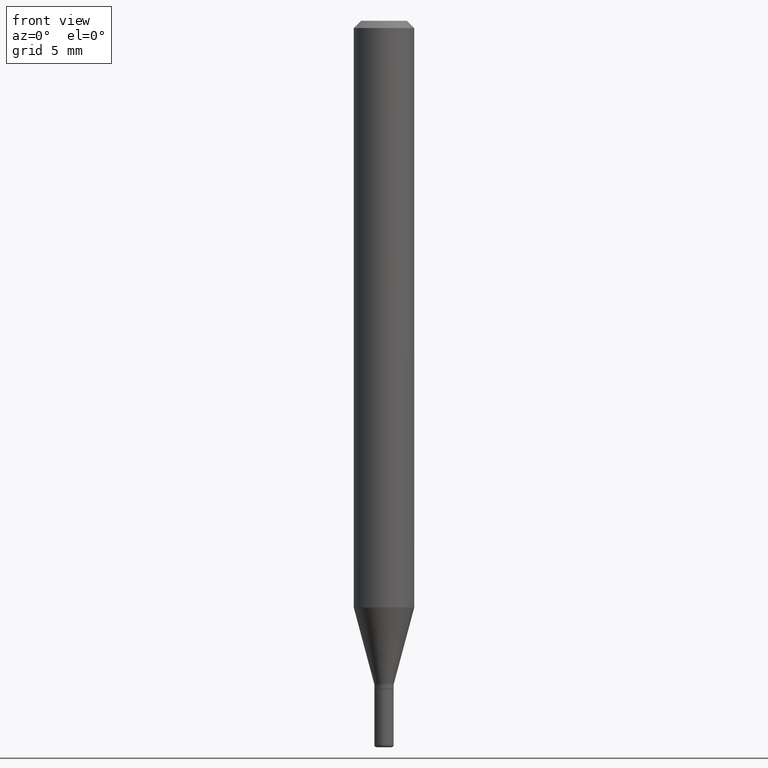
[diagram: clean part render]
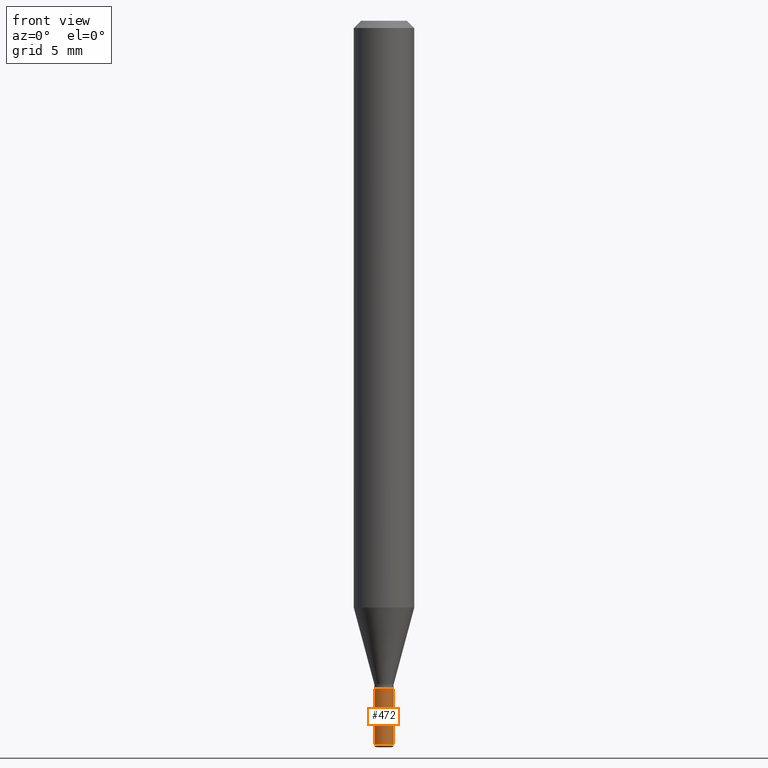
[diagram: same view with one face highlighted and labeled with its STEP entity id]
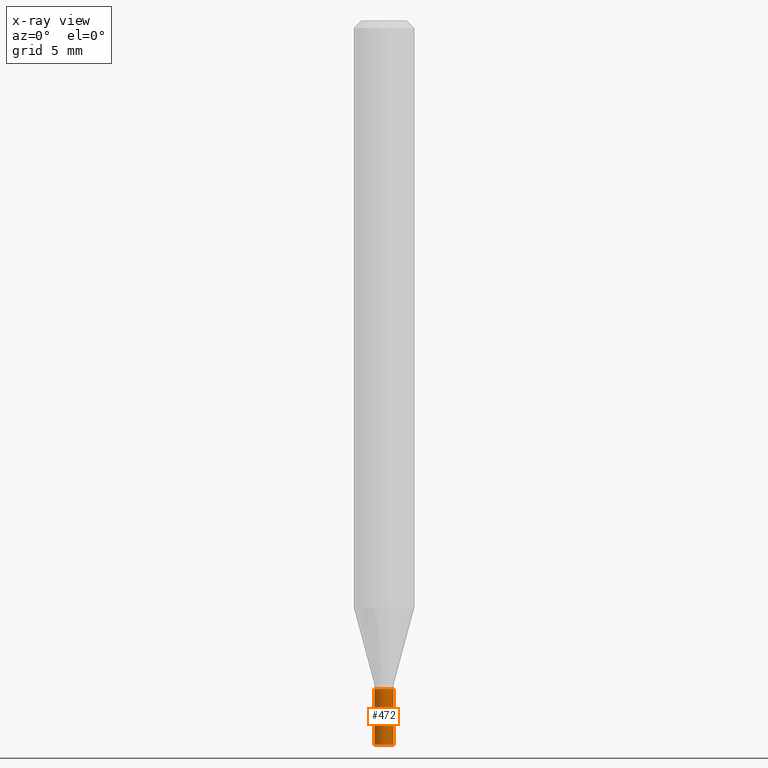
[diagram: x-ray of the same camera — body ghosted, the highlighted face saturated]
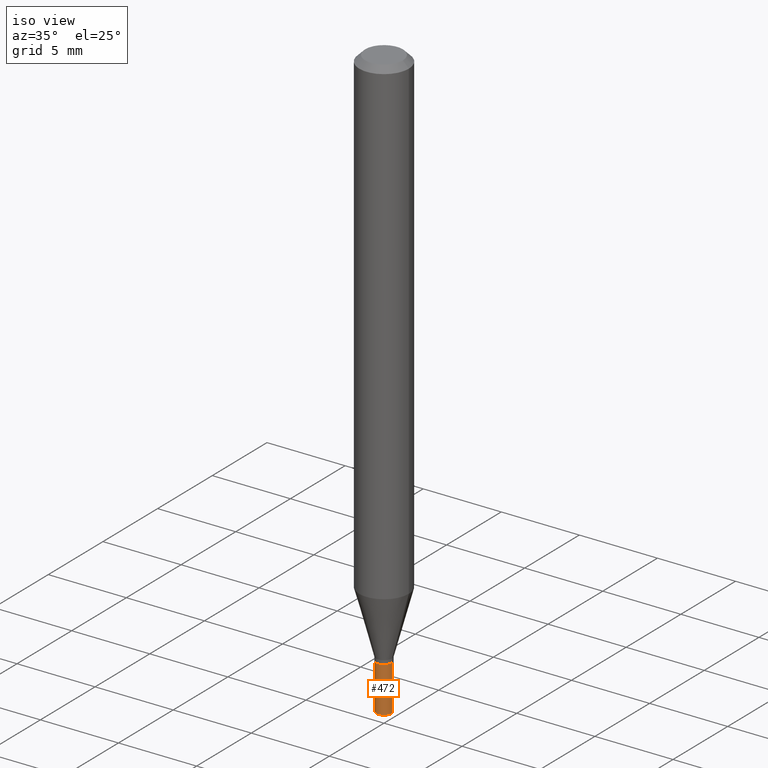
[diagram: same view with one face highlighted and labeled with its STEP entity id]
A machine part, front view. The second image highlights one B-rep face of the part: STEP entity #472.
The next image is the same camera in x-ray: the body ghosted, the highlighted face saturated — about 0% of this face is hidden behind the body in this view.
A second angle (iso view) of the same face is appended — the face is thin or edge-on in the first view.
In plain terms, the highlighted cylindrical surface (edge-blend (fillet) strip) has radius 0.508 mm, axis along (-0, 0, 1).
Its self-contained STEP definition (entity closure, byte-faithful):
#17 = CARTESIAN_POINT ( 'NONE',  ( 0.02000000000000009062, -1.396592535537259554E-16, 9.752353551591915727E-31 ) ) ;
#22 = CIRCLE ( 'NONE', #242, 0.02000000000000018083 ) ;
#26 = CARTESIAN_POINT ( 'NONE',  ( 3.374746952535488593E-29, -4.818244247603541543E-15, -1.380000000000000115 ) ) ;
#103 = EDGE_CURVE ( 'NONE', #325, #399, #130, .T. ) ;
#111 = CARTESIAN_POINT ( 'NONE',  ( 3.655975865246779683E-29, -5.219764601570503930E-15, -1.495000000000000329 ) ) ;
#118 = VERTEX_POINT ( 'NONE', #365 ) ;
#120 = EDGE_CURVE ( 'NONE', #118, #322, #137, .T. ) ;
#130 = LINE ( 'NONE', #423, #390 ) ;
#134 = DIRECTION ( 'NONE',  ( -2.445468806185136877E-29, 3.491481338843145188E-15, 1.000000000000000000 ) ) ;
#137 = LINE ( 'NONE', #17, #426 ) ;
#142 = CYLINDRICAL_SURFACE ( 'NONE', #208, 0.02000000000000009062 ) ;
#145 = CARTESIAN_POINT ( 'NONE',  ( 0.000000000000000000, 0.000000000000000000, 0.000000000000000000 ) ) ;
#146 = DIRECTION ( 'NONE',  ( 1.000000000000000000, -6.982962677686269077E-15, 0.000000000000000000 ) ) ;
#153 = DIRECTION ( 'NONE',  ( 1.000000000000000000, -6.982962677686284065E-15, 0.000000000000000000 ) ) ;
#187 = CARTESIAN_POINT ( 'NONE',  ( -0.02000000000000000042, -4.876895877435002179E-15, -1.380000000000000115 ) ) ;
#190 = FACE_OUTER_BOUND ( 'NONE', #418, .T. ) ;
#205 = ORIENTED_EDGE ( 'NONE', *, *, #319, .F. ) ;
#208 = AXIS2_PLACEMENT_3D ( 'NONE', #145, #224, #298 ) ;
#224 = DIRECTION ( 'NONE',  ( -2.445468806185136597E-29, 3.491481338843145583E-15, 1.000000000000000000 ) ) ;
#227 = DIRECTION ( 'NONE',  ( -2.445468806185136597E-29, 3.491481338843145583E-15, 1.000000000000000000 ) ) ;
#242 = AXIS2_PLACEMENT_3D ( 'NONE', #111, #379, #146 ) ;
#293 = ORIENTED_EDGE ( 'NONE', *, *, #103, .F. ) ;
#298 = DIRECTION ( 'NONE',  ( 1.000000000000000000, -6.982962677686265922E-15, 4.876176775795935793E-29 ) ) ;
#313 = ORIENTED_EDGE ( 'NONE', *, *, #120, .T. ) ;
#319 = EDGE_CURVE ( 'NONE', #399, #322, #407, .T. ) ;
#322 = VERTEX_POINT ( 'NONE', #468 ) ;
#325 = VERTEX_POINT ( 'NONE', #474 ) ;
#344 = EDGE_CURVE ( 'NONE', #325, #118, #22, .T. ) ;
#365 = CARTESIAN_POINT ( 'NONE',  ( 0.02000000000000018083, -5.359423855124230526E-15, -1.495000000000000329 ) ) ;
#379 = DIRECTION ( 'NONE',  ( -2.445468806185136597E-29, 3.491481338843145583E-15, 1.000000000000000000 ) ) ;
#390 = VECTOR ( 'NONE', #134, 39.37007874015748143 ) ;
#399 = VERTEX_POINT ( 'NONE', #187 ) ;
#407 = CIRCLE ( 'NONE', #434, 0.02000000000000000042 ) ;
#418 = EDGE_LOOP ( 'NONE', ( #293, #475, #313, #205 ) ) ;
#423 = CARTESIAN_POINT ( 'NONE',  ( -0.02000000000000009062, 1.421085471520206811E-16, -9.837870180509856335E-31 ) ) ;
#426 = VECTOR ( 'NONE', #451, 39.37007874015748143 ) ;
#434 = AXIS2_PLACEMENT_3D ( 'NONE', #26, #227, #153 ) ;
#451 = DIRECTION ( 'NONE',  ( -2.445468806185136877E-29, 3.491481338843145188E-15, 1.000000000000000000 ) ) ;
#468 = CARTESIAN_POINT ( 'NONE',  ( 0.02000000000000000042, -4.957903501157267351E-15, -1.380000000000000115 ) ) ;
#472 = ADVANCED_FACE ( 'NONE', ( #190 ), #142, .T. ) ;
#474 = CARTESIAN_POINT ( 'NONE',  ( -0.02000000000000018083, -4.876895877435000601E-15, -1.495000000000000329 ) ) ;
#475 = ORIENTED_EDGE ( 'NONE', *, *, #344, .T. ) ;